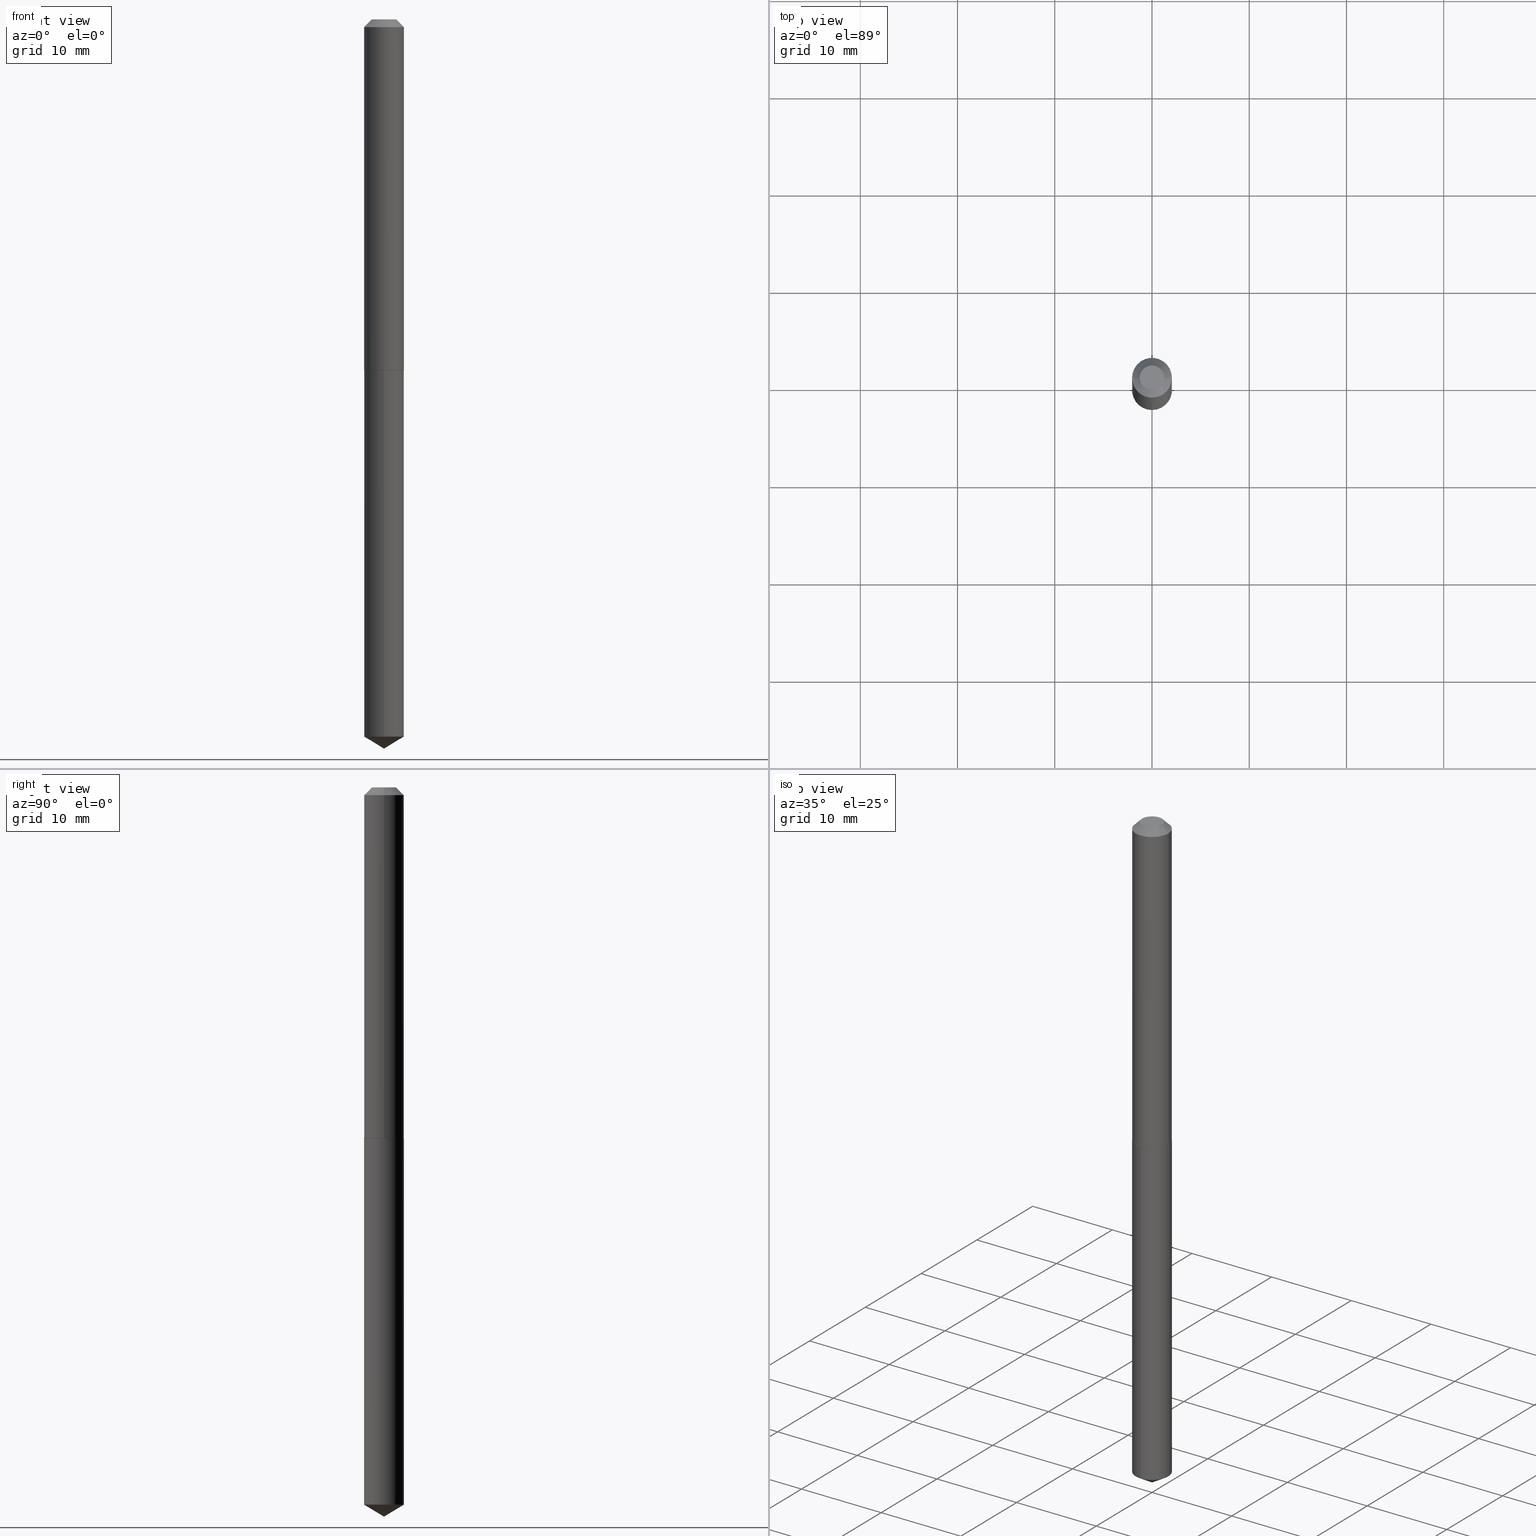
[diagram: canonical four-view strip — front | top / right | iso, engineering-drawing reading convention]
A machine part, canonical four-view strip (front | top / right | iso — engineering-drawing reading convention). The complete STEP part file that produces these views, byte-faithful:
ISO-10303-21;
HEADER;
FILE_DESCRIPTION (( 'STEP AP203' ),
    '1' );
FILE_NAME ('68318.STEP',
    '2024-04-23T13:04:34',
    ( '' ),
    ( '' ),
    'SwSTEP 2.0',
    'SolidWorks 2023',
    '' );
FILE_SCHEMA (( 'CONFIG_CONTROL_DESIGN' ));
ENDSEC;

DATA;
#1 = PERSON_AND_ORGANIZATION ( #242, #229 ) ;
#2 = ADVANCED_FACE ( 'NONE', ( #318 ), #248, .T. ) ;
#3 = AXIS2_PLACEMENT_3D ( 'NONE', #60, #372, #315 ) ;
#4 = CARTESIAN_POINT ( 'NONE',  ( 3.475744814230933928E-29, -4.962442426897761682E-15, -1.421299999999999564 ) ) ;
#5 = DIRECTION ( 'NONE',  ( -1.000000000000000000, 6.982962677686265922E-15, -4.876176775795935793E-29 ) ) ;
#6 = FACE_OUTER_BOUND ( 'NONE', #376, .T. ) ;
#7 = AXIS2_PLACEMENT_3D ( 'NONE', #100, #265, #285 ) ;
#8 = CARTESIAN_POINT ( 'NONE',  ( 0.08020000000000028495, -5.522476033648201326E-15, -1.421299999999999342 ) ) ;
#9 = DIRECTION ( 'NONE',  ( 1.000000000000000000, -6.982962677686269077E-15, 0.000000000000000000 ) ) ;
#10 = EDGE_CURVE ( 'NONE', #201, #239, #12, .T. ) ;
#11 = DIRECTION ( 'NONE',  ( -2.445468806185136877E-29, 3.491481338843145188E-15, 1.000000000000000000 ) ) ;
#12 = LINE ( 'NONE', #254, #91 ) ;
#13 = VECTOR ( 'NONE', #236, 39.37007874015748143 ) ;
#14 = PLANE ( 'NONE',  #300 ) ;
#15 = CC_DESIGN_APPROVAL ( #127, ( #56 ) ) ;
#16 = CARTESIAN_POINT ( 'NONE',  ( 7.220975350531940254E-29, -1.030965524028098559E-14, -2.952799999999999869 ) ) ;
#17 = EDGE_CURVE ( 'NONE', #239, #47, #288, .T. ) ;
#18 = CARTESIAN_POINT ( 'NONE',  ( 3.475744814230933928E-29, -4.962442426897761682E-15, -1.421299999999999564 ) ) ;
#19 = VECTOR ( 'NONE', #11, 39.37007874015748143 ) ;
#20 = LOCAL_TIME ( 9, 4, 34.00000000000000000, #119 ) ;
#21 = ORIENTED_EDGE ( 'NONE', *, *, #317, .F. ) ;
#22 = EDGE_LOOP ( 'NONE', ( #331, #26, #101, #279 ) ) ;
#23 = ADVANCED_FACE ( 'NONE', ( #40 ), #263, .T. ) ;
#24 = CIRCLE ( 'NONE', #55, 0.08069999999999999396 ) ;
#25 = PERSON_AND_ORGANIZATION_ROLE ( 'design_supplier' ) ;
#26 = ORIENTED_EDGE ( 'NONE', *, *, #116, .T. ) ;
#27 = DATE_TIME_ROLE ( 'creation_date' ) ;
#28 = ORIENTED_EDGE ( 'NONE', *, *, #104, .T. ) ;
#29 = ORIENTED_EDGE ( 'NONE', *, *, #67, .F. ) ;
#30 = PLANE ( 'NONE',  #345 ) ;
#31 = CARTESIAN_POINT ( 'NONE',  ( 7.220809219167172269E-29, -1.030989108179921796E-14, -2.952799999999999869 ) ) ;
#32 = DIRECTION ( 'NONE',  ( 0.7071067811865452413, -7.319954787623248157E-15, -0.7071067811865497932 ) ) ;
#33 = VECTOR ( 'NONE', #89, 39.37007874015748143 ) ;
#34 = APPROVAL_PERSON_ORGANIZATION ( #273, #130, #231 ) ;
#35 = LINE ( 'NONE', #122, #141 ) ;
#36 = DIRECTION ( 'NONE',  ( -6.982962677686265922E-15, -1.000000000000000000, 3.468864327941583565E-15 ) ) ;
#37 = CARTESIAN_POINT ( 'NONE',  ( 3.475744814230932807E-29, -4.962442426897760893E-15, -1.421299999999999342 ) ) ;
#38 = ORIENTED_EDGE ( 'NONE', *, *, #17, .T. ) ;
#39 = CARTESIAN_POINT ( 'NONE',  ( 7.642090019328601786E-31, -1.091087918388490144E-16, -0.03125000000000020123 ) ) ;
#40 = FACE_OUTER_BOUND ( 'NONE', #251, .T. ) ;
#41 = CARTESIAN_POINT ( 'NONE',  ( -0.08070000000000016049, -4.387288698469938583E-15, -1.420799999999999841 ) ) ;
#42 =( NAMED_UNIT ( * ) SI_UNIT ( $, .STERADIAN. ) SOLID_ANGLE_UNIT ( ) );
#43 = CC_DESIGN_SECURITY_CLASSIFICATION ( #170, ( #56 ) ) ;
#44 = LINE ( 'NONE', #63, #334 ) ;
#45 = DIRECTION ( 'NONE',  ( 1.000000000000000000, -6.982962677686266711E-15, 4.876176775795935793E-29 ) ) ;
#46 = DIRECTION ( 'NONE',  ( -2.445468806185136597E-29, 3.491481338843145583E-15, 1.000000000000000000 ) ) ;
#47 = VERTEX_POINT ( 'NONE', #41 ) ;
#48 = LENGTH_MEASURE_WITH_UNIT ( LENGTH_MEASURE( 0.02539999999999999897 ), #295 );
#49 = CONICAL_SURFACE ( 'NONE', #64, 0.08070000000000016049, 0.7853981633977044075 ) ;
#50 = APPLICATION_PROTOCOL_DEFINITION ( 'international standard', 'config_control_design', 1994, #155 ) ;
#51 = VERTEX_POINT ( 'NONE', #259 ) ;
#52 = DESIGN_CONTEXT ( 'detailed design', #155, 'design' ) ;
#53 = APPROVAL_STATUS ( 'not_yet_approved' ) ;
#54 = VECTOR ( 'NONE', #225, 39.37007874015748143 ) ;
#55 = AXIS2_PLACEMENT_3D ( 'NONE', #39, #46, #109 ) ;
#56 = PRODUCT_DEFINITION_FORMATION_WITH_SPECIFIED_SOURCE ( 'ANY', '', #260, .NOT_KNOWN. ) ;
#57 = SHAPE_DEFINITION_REPRESENTATION ( #193, #356 ) ;
#58 = FACE_OUTER_BOUND ( 'NONE', #244, .T. ) ;
#59 = FACE_OUTER_BOUND ( 'NONE', #159, .T. ) ;
#60 = CARTESIAN_POINT ( 'NONE',  ( 7.642090019328601786E-31, -1.091087918388490144E-16, -0.03125000000000020123 ) ) ;
#61 = FACE_OUTER_BOUND ( 'NONE', #107, .T. ) ;
#62 = VERTEX_POINT ( 'NONE', #327 ) ;
#63 = CARTESIAN_POINT ( 'NONE',  ( -0.08069999999999999396, 4.544162962504325645E-16, -0.03125000000000020123 ) ) ;
#64 = AXIS2_PLACEMENT_3D ( 'NONE', #253, #291, #223 ) ;
#65 = DIRECTION ( 'NONE',  ( -5.985567269335946802E-15, -0.8571673007021111124, 0.5150380749100559319 ) ) ;
#66 = PRODUCT_RELATED_PRODUCT_CATEGORY ( 'detail', '', ( #260 ) ) ;
#67 = EDGE_CURVE ( 'NONE', #201, #238, #181, .T. ) ;
#68 =( NAMED_UNIT ( * ) PLANE_ANGLE_UNIT ( ) SI_UNIT ( $, .RADIAN. ) );
#69 = DIRECTION ( 'NONE',  ( 1.000000000000000000, -6.982962677686269077E-15, 0.000000000000000000 ) ) ;
#70 = DIRECTION ( 'NONE',  ( -2.445410870755612357E-29, 3.491564305675704227E-15, 1.000000000000000000 ) ) ;
#71 = EDGE_CURVE ( 'NONE', #62, #224, #44, .T. ) ;
#72 = CIRCLE ( 'NONE', #204, 0.08020000000000028495 ) ;
#73 = LOCAL_TIME ( 9, 4, 34.00000000000000000, #147 ) ;
#74 = EDGE_CURVE ( 'NONE', #103, #224, #286, .T. ) ;
#75 = CARTESIAN_POINT ( 'NONE',  ( 0.000000000000000000, 0.000000000000000000, 0.000000000000000000 ) ) ;
#76 = ORIENTED_EDGE ( 'NONE', *, *, #222, .T. ) ;
#77 = VECTOR ( 'NONE', #337, 39.37007874015748143 ) ;
#78 = LOCAL_TIME ( 9, 4, 34.00000000000000000, #272 ) ;
#79 = CLOSED_SHELL ( 'NONE', ( #174, #23, #95, #2, #226 ) ) ;
#80 = ORIENTED_EDGE ( 'NONE', *, *, #384, .T. ) ;
#81 = APPROVAL_STATUS ( 'not_yet_approved' ) ;
#82 = CC_DESIGN_PERSON_AND_ORGANIZATION_ASSIGNMENT ( #321, #175, ( #260 ) ) ;
#83 = ORIENTED_EDGE ( 'NONE', *, *, #71, .F. ) ;
#84 = CALENDAR_DATE ( 2024, 23, 4 ) ;
#85 = AXIS2_PLACEMENT_3D ( 'NONE', #186, #98, #210 ) ;
#86 = LOCAL_TIME ( 9, 4, 34.00000000000000000, #385 ) ;
#87 = DATE_AND_TIME ( #303, #20 ) ;
#88 = EDGE_CURVE ( 'NONE', #239, #103, #214, .T. ) ;
#89 = DIRECTION ( 'NONE',  ( -2.445410870755612357E-29, 3.491564305675704227E-15, 1.000000000000000000 ) ) ;
#90 = DIRECTION ( 'NONE',  ( -2.445468806185136597E-29, 3.491481338843145583E-15, 1.000000000000000000 ) ) ;
#91 = VECTOR ( 'NONE', #323, 39.37007874015748143 ) ;
#92 = AXIS2_PLACEMENT_3D ( 'NONE', #4, #282, #311 ) ;
#93 = CC_DESIGN_APPROVAL ( #146, ( #287 ) ) ;
#94 = DIRECTION ( 'NONE',  ( -2.445468806185136597E-29, 3.491481338843145583E-15, 1.000000000000000000 ) ) ;
#95 = ADVANCED_FACE ( 'NONE', ( #6 ), #379, .T. ) ;
#96 = CARTESIAN_POINT ( 'NONE',  ( -0.08070000000000007723, 5.734079877584013987E-16, -3.969580617835712947E-30 ) ) ;
#97 = ORIENTED_EDGE ( 'NONE', *, *, #275, .T. ) ;
#98 = DIRECTION ( 'NONE',  ( 2.445410870755612077E-29, -3.491564305675704227E-15, -1.000000000000000000 ) ) ;
#99 = AXIS2_PLACEMENT_3D ( 'NONE', #348, #355, #139 ) ;
#100 = CARTESIAN_POINT ( 'NONE',  ( 7.642090019328601786E-31, -1.091087918388490144E-16, -0.03125000000000020123 ) ) ;
#101 = ORIENTED_EDGE ( 'NONE', *, *, #10, .T. ) ;
#102 = DIRECTION ( 'NONE',  ( 1.000000000000000000, -6.982962677686265133E-15, 0.000000000000000000 ) ) ;
#103 = VERTEX_POINT ( 'NONE', #235 ) ;
#104 = EDGE_CURVE ( 'NONE', #196, #62, #354, .T. ) ;
#105 = LINE ( 'NONE', #220, #367 ) ;
#106 = ORIENTED_EDGE ( 'NONE', *, *, #211, .T. ) ;
#107 = EDGE_LOOP ( 'NONE', ( #271, #194 ) ) ;
#108 = MANIFOLD_SOLID_BREP ( 'Body-Move/Copy2[2]', #182 ) ;
#109 = DIRECTION ( 'NONE',  ( 1.000000000000000000, -6.982962677686266711E-15, 0.000000000000000000 ) ) ;
#110 = AXIS2_PLACEMENT_3D ( 'NONE', #129, #132, #36 ) ;
#111 = MECHANICAL_CONTEXT ( 'NONE', #294, 'mechanical' ) ;
#112 = APPROVAL_PERSON_ORGANIZATION ( #1, #127, #388 ) ;
#113 = DIRECTION ( 'NONE',  ( 0.000000000000000000, 0.000000000000000000, 1.000000000000000000 ) ) ;
#114 = APPROVAL_STATUS ( 'not_yet_approved' ) ;
#115 = AXIS2_PLACEMENT_3D ( 'NONE', #313, #370, #164 ) ;
#116 = EDGE_CURVE ( 'NONE', #238, #201, #72, .T. ) ;
#117 = ORIENTED_EDGE ( 'NONE', *, *, #209, .F. ) ;
#118 = ORIENTED_EDGE ( 'NONE', *, *, #368, .F. ) ;
#119 = COORDINATED_UNIVERSAL_TIME_OFFSET ( 5, 0, .BEHIND. ) ;
#120 = CIRCLE ( 'NONE', #99, 0.04944999999999999396 ) ;
#121 = CC_DESIGN_APPROVAL ( #130, ( #170 ) ) ;
#122 = CARTESIAN_POINT ( 'NONE',  ( 7.220809219167172269E-29, -1.030989108179921796E-14, -2.952799999999999869 ) ) ;
#123 = ORIENTED_EDGE ( 'NONE', *, *, #211, .F. ) ;
#124 = DIRECTION ( 'NONE',  ( -6.982962677686266711E-15, -1.000000000000000000, 6.770379166454184154E-15 ) ) ;
#125 = CARTESIAN_POINT ( 'NONE',  ( -1.182960040634179348E-47, 1.688953421129297978E-33, 4.837354856632025983E-19 ) ) ;
#126 = AXIS2_PLACEMENT_3D ( 'NONE', #339, #207, #102 ) ;
#127 = APPROVAL ( #81, 'UNSPECIFIED' ) ;
#128 = CYLINDRICAL_SURFACE ( 'NONE', #176, 0.08070000000000007723 ) ;
#129 = CARTESIAN_POINT ( 'NONE',  ( -8.905512697089237819E-28, 1.271533884797356640E-13, 36.41727874015747801 ) ) ;
#130 = APPROVAL ( #53, 'UNSPECIFIED' ) ;
#131 = DIRECTION ( 'NONE',  ( -2.445410870755612357E-29, 3.491564305675704227E-15, 1.000000000000000000 ) ) ;
#132 = DIRECTION ( 'NONE',  ( -2.445410870755612357E-29, 3.491564305675704227E-15, 1.000000000000000000 ) ) ;
#133 = ORIENTED_EDGE ( 'NONE', *, *, #88, .T. ) ;
#134 = CARTESIAN_POINT ( 'NONE',  ( 0.08070000000000016049, -5.524221774317623619E-15, -1.420799999999999841 ) ) ;
#135 = EDGE_CURVE ( 'NONE', #51, #324, #152, .T. ) ;
#136 = APPROVAL_PERSON_ORGANIZATION ( #173, #146, #179 ) ;
#137 = LINE ( 'NONE', #16, #54 ) ;
#138 = ADVANCED_FACE ( 'NONE', ( #247 ), #128, .T. ) ;
#139 = DIRECTION ( 'NONE',  ( 1.000000000000000000, -6.982962677686266711E-15, 4.876163536243812801E-29 ) ) ;
#140 = ORIENTED_EDGE ( 'NONE', *, *, #359, .T. ) ;
#141 = VECTOR ( 'NONE', #65, 39.37007874015748854 ) ;
#142 = FACE_OUTER_BOUND ( 'NONE', #151, .T. ) ;
#143 = APPROVAL_DATE_TIME ( #87, #127 ) ;
#144 = VERTEX_POINT ( 'NONE', #342 ) ;
#145 = ORIENTED_EDGE ( 'NONE', *, *, #67, .T. ) ;
#146 = APPROVAL ( #114, 'UNSPECIFIED' ) ;
#147 = COORDINATED_UNIVERSAL_TIME_OFFSET ( 5, 0, .BEHIND. ) ;
#148 = ORIENTED_EDGE ( 'NONE', *, *, #382, .T. ) ;
#149 = DATE_TIME_ROLE ( 'classification_date' ) ;
#150 = ADVANCED_FACE ( 'NONE', ( #59 ), #187, .T. ) ;
#151 = EDGE_LOOP ( 'NONE', ( #360, #218, #169, #83 ) ) ;
#152 = CIRCLE ( 'NONE', #228, 0.08069999999999999396 ) ;
#153 = DIRECTION ( 'NONE',  ( -2.445468806185136597E-29, 3.491481338843145583E-15, 1.000000000000000000 ) ) ;
#154 = ADVANCED_FACE ( 'NONE', ( #306 ), #374, .T. ) ;
#155 = APPLICATION_CONTEXT ( 'configuration controlled 3d designs of mechanical parts and assemblies' ) ;
#156 = DIRECTION ( 'NONE',  ( 1.000000000000000000, -6.982962677686265133E-15, 0.000000000000000000 ) ) ;
#157 = EDGE_CURVE ( 'NONE', #144, #324, #180, .T. ) ;
#158 = CARTESIAN_POINT ( 'NONE',  ( 0.000000000000000000, 0.000000000000000000, 0.000000000000000000 ) ) ;
#159 = EDGE_LOOP ( 'NONE', ( #145, #330, #292, #172 ) ) ;
#160 = AXIS2_PLACEMENT_3D ( 'NONE', #351, #353, #340 ) ;
#161 = CC_DESIGN_DATE_AND_TIME_ASSIGNMENT ( #200, #27, ( #287 ) ) ;
#162 = LINE ( 'NONE', #216, #233 ) ;
#163 = DIRECTION ( 'NONE',  ( -2.445468806185136597E-29, 3.491481338843145583E-15, 1.000000000000000000 ) ) ;
#164 = DIRECTION ( 'NONE',  ( -6.982962677686266711E-15, -1.000000000000000000, 3.385189583227092077E-15 ) ) ;
#165 = DIRECTION ( 'NONE',  ( -2.445468806185136597E-29, 3.491481338843145583E-15, 1.000000000000000000 ) ) ;
#166 = AXIS2_PLACEMENT_3D ( 'NONE', #343, #309, #249 ) ;
#167 = EDGE_CURVE ( 'NONE', #238, #47, #215, .T. ) ;
#168 =( CONVERSION_BASED_UNIT ( 'INCH', #48 ) LENGTH_UNIT ( ) NAMED_UNIT ( #252 ) );
#169 = ORIENTED_EDGE ( 'NONE', *, *, #74, .T. ) ;
#170 = SECURITY_CLASSIFICATION ( '', '', #297 ) ;
#171 = FACE_OUTER_BOUND ( 'NONE', #22, .T. ) ;
#172 = ORIENTED_EDGE ( 'NONE', *, *, #10, .F. ) ;
#173 = PERSON_AND_ORGANIZATION ( #242, #229 ) ;
#174 = ADVANCED_FACE ( 'NONE', ( #305 ), #184, .T. ) ;
#175 = PERSON_AND_ORGANIZATION_ROLE ( 'design_owner' ) ;
#176 = AXIS2_PLACEMENT_3D ( 'NONE', #158, #163, #245 ) ;
#177 = ORIENTED_EDGE ( 'NONE', *, *, #71, .T. ) ;
#178 = VERTEX_POINT ( 'NONE', #31 ) ;
#179 = APPROVAL_ROLE ( '' ) ;
#180 = LINE ( 'NONE', #212, #33 ) ;
#181 = CIRCLE ( 'NONE', #126, 0.08020000000000028495 ) ;
#182 = CLOSED_SHELL ( 'NONE', ( #347, #299, #150, #307, #314, #138, #154, #258 ) ) ;
#183 = CARTESIAN_POINT ( 'NONE',  ( 3.474522079827841687E-29, -4.960696686228340179E-15, -1.420799999999999841 ) ) ;
#184 = CYLINDRICAL_SURFACE ( 'NONE', #92, 0.08069999999999999396 ) ;
#185 = EDGE_LOOP ( 'NONE', ( #117, #118, #177, #148 ) ) ;
#186 = CARTESIAN_POINT ( 'NONE',  ( 3.475744814230933928E-29, -4.962442426897761682E-15, -1.421299999999999564 ) ) ;
#187 = CONICAL_SURFACE ( 'NONE', #227, 0.08070000000000016049, 0.7853981633977044075 ) ;
#188 = CARTESIAN_POINT ( 'NONE',  ( 7.102314929864133069E-29, -1.014046912139041689E-14, -2.904310548044475748 ) ) ;
#189 = CARTESIAN_POINT ( 'NONE',  ( 3.475744814230932807E-29, -4.962442426897760893E-15, -1.421299999999999342 ) ) ;
#190 = CARTESIAN_POINT ( 'NONE',  ( 7.102314929864133069E-29, -1.014046912139041689E-14, -2.904310548044475748 ) ) ;
#191 = CONICAL_SURFACE ( 'NONE', #7, 0.08069999999999999396, 0.7853981633974450594 ) ;
#192 = DIRECTION ( 'NONE',  ( -6.982962677686266711E-15, -1.000000000000000000, 3.385189583227092077E-15 ) ) ;
#193 = PRODUCT_DEFINITION_SHAPE ( 'NONE', 'NONE',  #287 ) ;
#194 = ORIENTED_EDGE ( 'NONE', *, *, #135, .T. ) ;
#195 = CARTESIAN_POINT ( 'NONE',  ( -5.635250880892469553E-16, -0.08070000000000496221, -1.421299999999999342 ) ) ;
#196 = VERTEX_POINT ( 'NONE', #308 ) ;
#197 = AXIS2_PLACEMENT_3D ( 'NONE', #125, #328, #361 ) ;
#198 = CALENDAR_DATE ( 2024, 23, 4 ) ;
#199 = UNCERTAINTY_MEASURE_WITH_UNIT (LENGTH_MEASURE( 1.000000000000000082E-05 ), #168, 'distance_accuracy_value', 'NONE');
#200 = DATE_AND_TIME ( #84, #205 ) ;
#201 = VERTEX_POINT ( 'NONE', #8 ) ;
#202 = PERSON_AND_ORGANIZATION ( #242, #229 ) ;
#203 = ORIENTED_EDGE ( 'NONE', *, *, #320, .T. ) ;
#204 = AXIS2_PLACEMENT_3D ( 'NONE', #37, #94, #156 ) ;
#205 = LOCAL_TIME ( 9, 4, 34.00000000000000000, #363 ) ;
#206 = ORIENTED_EDGE ( 'NONE', *, *, #88, .F. ) ;
#207 = DIRECTION ( 'NONE',  ( -2.445468806185136597E-29, 3.491481338843145583E-15, 1.000000000000000000 ) ) ;
#208 = APPROVAL_DATE_TIME ( #383, #130 ) ;
#209 = EDGE_CURVE ( 'NONE', #196, #103, #162, .T. ) ;
#210 = DIRECTION ( 'NONE',  ( 6.982962677686265922E-15, 1.000000000000000000, -3.491564305675704227E-15 ) ) ;
#211 = EDGE_CURVE ( 'NONE', #47, #224, #278, .T. ) ;
#212 = CARTESIAN_POINT ( 'NONE',  ( -5.635250880892469553E-16, -0.08070000000000496221, -1.421299999999999342 ) ) ;
#213 = CIRCLE ( 'NONE', #364, 0.08069999999999999396 ) ;
#214 = LINE ( 'NONE', #381, #13 ) ;
#215 = LINE ( 'NONE', #250, #77 ) ;
#216 = CARTESIAN_POINT ( 'NONE',  ( 0.08069999999999999396, -6.627509802590116239E-16, -0.03125000000000020123 ) ) ;
#217 = CC_DESIGN_DATE_AND_TIME_ASSIGNMENT ( #335, #149, ( #170 ) ) ;
#218 = ORIENTED_EDGE ( 'NONE', *, *, #209, .T. ) ;
#219 = CARTESIAN_POINT ( 'NONE',  ( 3.474522079827841687E-29, -4.960696686228340179E-15, -1.420799999999999841 ) ) ;
#220 = CARTESIAN_POINT ( 'NONE',  ( 5.734079877584354184E-16, 0.08069999999999502571, -1.421300000000000008 ) ) ;
#221 = DIRECTION ( 'NONE',  ( -0.7071067811865452413, 2.468850131082233000E-15, -0.7071067811865497932 ) ) ;
#222 = EDGE_CURVE ( 'NONE', #47, #239, #241, .T. ) ;
#223 = DIRECTION ( 'NONE',  ( 1.000000000000000000, -6.982962677686269077E-15, 0.000000000000000000 ) ) ;
#224 = VERTEX_POINT ( 'NONE', #344 ) ;
#225 = DIRECTION ( 'NONE',  ( 6.090539988449784746E-15, 0.8571673007021146651, 0.5150380749100500477 ) ) ;
#226 = ADVANCED_FACE ( 'NONE', ( #61 ), #276, .F. ) ;
#227 = AXIS2_PLACEMENT_3D ( 'NONE', #183, #90, #284 ) ;
#228 = AXIS2_PLACEMENT_3D ( 'NONE', #346, #131, #365 ) ;
#229 = ORGANIZATION ( 'UNSPECIFIED', 'UNSPECIFIED', '' ) ;
#230 = ORIENTED_EDGE ( 'NONE', *, *, #368, .T. ) ;
#231 = APPROVAL_ROLE ( '' ) ;
#232 = EDGE_LOOP ( 'NONE', ( #123, #76, #133, #312 ) ) ;
#233 = VECTOR ( 'NONE', #32, 39.37007874015748143 ) ;
#234 = PERSON_AND_ORGANIZATION_ROLE ( 'creator' ) ;
#235 = CARTESIAN_POINT ( 'NONE',  ( 0.08069999999999999396, -6.726338799281306672E-16, -0.03125000000000020123 ) ) ;
#236 = DIRECTION ( 'NONE',  ( -2.445468806185136877E-29, 3.491481338843145188E-15, 1.000000000000000000 ) ) ;
#237 = PERSON_AND_ORGANIZATION ( #242, #229 ) ;
#238 = VERTEX_POINT ( 'NONE', #373 ) ;
#239 = VERTEX_POINT ( 'NONE', #134 ) ;
#240 = EDGE_LOOP ( 'NONE', ( #97, #140, #21, #243 ) ) ;
#241 = CIRCLE ( 'NONE', #386, 0.08070000000000016049 ) ;
#242 = PERSON ( 'UNSPECIFIED', 'UNSPECIFIED', 'UNSPECIFIED', ('UNSPECIFIED'), ('UNSPECIFIED'), ('UNSPECIFIED') ) ;
#243 = ORIENTED_EDGE ( 'NONE', *, *, #157, .F. ) ;
#244 = EDGE_LOOP ( 'NONE', ( #230, #28 ) ) ;
#245 = DIRECTION ( 'NONE',  ( 1.000000000000000000, -6.982962677686266711E-15, 4.876176775795935793E-29 ) ) ;
#246 = FACE_OUTER_BOUND ( 'NONE', #298, .T. ) ;
#247 = FACE_OUTER_BOUND ( 'NONE', #232, .T. ) ;
#248 = CYLINDRICAL_SURFACE ( 'NONE', #115, 0.08069999999999999396 ) ;
#249 = DIRECTION ( 'NONE',  ( -6.982962677686265922E-15, -1.000000000000000000, 3.468864327941583565E-15 ) ) ;
#250 = CARTESIAN_POINT ( 'NONE',  ( -0.08070000000000016049, -4.387288698469938583E-15, -1.420799999999999841 ) ) ;
#251 = EDGE_LOOP ( 'NONE', ( #336, #80, #268 ) ) ;
#252 = DIMENSIONAL_EXPONENTS ( 1.000000000000000000, 0.000000000000000000, 0.000000000000000000, 0.000000000000000000, 0.000000000000000000, 0.000000000000000000, 0.000000000000000000 ) ;
#253 = CARTESIAN_POINT ( 'NONE',  ( 3.474522079827841687E-29, -4.960696686228340179E-15, -1.420799999999999841 ) ) ;
#254 = CARTESIAN_POINT ( 'NONE',  ( 0.08070000000000016049, -5.524221774317623619E-15, -1.420799999999999841 ) ) ;
#255 = ORIENTED_EDGE ( 'NONE', *, *, #135, .F. ) ;
#256 = FACE_OUTER_BOUND ( 'NONE', #257, .T. ) ;
#257 = EDGE_LOOP ( 'NONE', ( #29, #261 ) ) ;
#258 = ADVANCED_FACE ( 'NONE', ( #58 ), #30, .F. ) ;
#259 = CARTESIAN_POINT ( 'NONE',  ( 5.734079877584720018E-16, 0.08069999999999502571, -1.421300000000000008 ) ) ;
#260 = PRODUCT ( '68318', '68318', '', ( #111 ) ) ;
#261 = ORIENTED_EDGE ( 'NONE', *, *, #116, .F. ) ;
#262 = DIRECTION ( 'NONE',  ( 1.000000000000000000, 0.000000000000000000, 0.000000000000000000 ) ) ;
#263 = CONICAL_SURFACE ( 'NONE', #110, 65.52281426576863055, 1.029744258676655866 ) ;
#264 =( GEOMETRIC_REPRESENTATION_CONTEXT ( 3 ) GLOBAL_UNCERTAINTY_ASSIGNED_CONTEXT ( ( #199 ) ) GLOBAL_UNIT_ASSIGNED_CONTEXT ( ( #168, #68, #42 ) ) REPRESENTATION_CONTEXT ( 'NONE', 'WORKASPACE' ) );
#265 = DIRECTION ( 'NONE',  ( 2.445468806185136597E-29, -3.491481338843145583E-15, -1.000000000000000000 ) ) ;
#266 = EDGE_CURVE ( 'NONE', #178, #144, #35, .T. ) ;
#267 = PERSON_AND_ORGANIZATION_ROLE ( 'classification_officer' ) ;
#268 = ORIENTED_EDGE ( 'NONE', *, *, #275, .F. ) ;
#269 = CALENDAR_DATE ( 2024, 23, 4 ) ;
#270 = CIRCLE ( 'NONE', #326, 0.08069999999999999396 ) ;
#271 = ORIENTED_EDGE ( 'NONE', *, *, #317, .T. ) ;
#272 = COORDINATED_UNIVERSAL_TIME_OFFSET ( 5, 0, .BEHIND. ) ;
#273 = PERSON_AND_ORGANIZATION ( #242, #229 ) ;
#274 = AXIS2_PLACEMENT_3D ( 'NONE', #190, #375, #316 ) ;
#275 = EDGE_CURVE ( 'NONE', #144, #304, #213, .T. ) ;
#276 = PLANE ( 'NONE',  #85 ) ;
#277 = DIRECTION ( 'NONE',  ( 2.438088387897960049E-29, -3.491481338843145188E-15, -1.000000000000000000 ) ) ;
#278 = LINE ( 'NONE', #96, #19 ) ;
#279 = ORIENTED_EDGE ( 'NONE', *, *, #222, .F. ) ;
#280 = AXIS2_PLACEMENT_3D ( 'NONE', #357, #113, #262 ) ;
#281 = CC_DESIGN_PERSON_AND_ORGANIZATION_ASSIGNMENT ( #358, #25, ( #56 ) ) ;
#282 = DIRECTION ( 'NONE',  ( -2.445410870755612357E-29, 3.491564305675704227E-15, 1.000000000000000000 ) ) ;
#283 = DIRECTION ( 'NONE',  ( -2.445468806185136597E-29, 3.491481338843145583E-15, 1.000000000000000000 ) ) ;
#284 = DIRECTION ( 'NONE',  ( 1.000000000000000000, -6.982962677686269077E-15, 0.000000000000000000 ) ) ;
#285 = DIRECTION ( 'NONE',  ( -1.000000000000000000, 6.982962677686266711E-15, 0.000000000000000000 ) ) ;
#286 = CIRCLE ( 'NONE', #160, 0.08069999999999999396 ) ;
#287 = PRODUCT_DEFINITION ( 'UNKNOWN', '', #56, #52 ) ;
#288 = CIRCLE ( 'NONE', #325, 0.08070000000000016049 ) ;
#289 = DIRECTION ( 'NONE',  ( -2.445410870755612357E-29, 3.491564305675704227E-15, 1.000000000000000000 ) ) ;
#290 = CC_DESIGN_PERSON_AND_ORGANIZATION_ASSIGNMENT ( #202, #267, ( #170 ) ) ;
#291 = DIRECTION ( 'NONE',  ( -2.445468806185136597E-29, 3.491481338843145583E-15, 1.000000000000000000 ) ) ;
#292 = ORIENTED_EDGE ( 'NONE', *, *, #17, .F. ) ;
#293 = AXIS2_PLACEMENT_3D ( 'NONE', #75, #165, #45 ) ;
#294 = APPLICATION_CONTEXT ( 'configuration controlled 3d designs of mechanical parts and assemblies' ) ;
#295 =( LENGTH_UNIT ( ) NAMED_UNIT ( * ) SI_UNIT ( $, .METRE. ) );
#296 = PERSON_AND_ORGANIZATION_ROLE ( 'creator' ) ;
#297 = SECURITY_CLASSIFICATION_LEVEL ( 'unclassified' ) ;
#298 = EDGE_LOOP ( 'NONE', ( #38, #106, #338, #206 ) ) ;
#299 = ADVANCED_FACE ( 'NONE', ( #246 ), #369, .T. ) ;
#300 = AXIS2_PLACEMENT_3D ( 'NONE', #189, #322, #377 ) ;
#301 = ORIENTED_EDGE ( 'NONE', *, *, #320, .F. ) ;
#302 = DATE_AND_TIME ( #329, #78 ) ;
#303 = CALENDAR_DATE ( 2024, 23, 4 ) ;
#304 = VERTEX_POINT ( 'NONE', #352 ) ;
#305 = FACE_OUTER_BOUND ( 'NONE', #240, .T. ) ;
#306 = FACE_OUTER_BOUND ( 'NONE', #185, .T. ) ;
#307 = ADVANCED_FACE ( 'NONE', ( #256 ), #14, .F. ) ;
#308 = CARTESIAN_POINT ( 'NONE',  ( 0.04944999999999999396, -5.010013031244069915E-16, 4.837354856661612119E-19 ) ) ;
#309 = DIRECTION ( 'NONE',  ( -2.445410870755612357E-29, 3.491564305675704227E-15, 1.000000000000000000 ) ) ;
#310 = CC_DESIGN_PERSON_AND_ORGANIZATION_ASSIGNMENT ( #362, #234, ( #56 ) ) ;
#311 = DIRECTION ( 'NONE',  ( -6.982962677686266711E-15, -1.000000000000000000, 3.385189583227092077E-15 ) ) ;
#312 = ORIENTED_EDGE ( 'NONE', *, *, #382, .F. ) ;
#313 = CARTESIAN_POINT ( 'NONE',  ( 3.475744814230933928E-29, -4.962442426897761682E-15, -1.421299999999999564 ) ) ;
#314 = ADVANCED_FACE ( 'NONE', ( #171 ), #49, .T. ) ;
#315 = DIRECTION ( 'NONE',  ( -1.000000000000000000, 6.982962677686266711E-15, 0.000000000000000000 ) ) ;
#316 = DIRECTION ( 'NONE',  ( -6.982962677686266711E-15, -1.000000000000000000, 6.770379166454184154E-15 ) ) ;
#317 = EDGE_CURVE ( 'NONE', #324, #51, #270, .T. ) ;
#318 = FACE_OUTER_BOUND ( 'NONE', #350, .T. ) ;
#319 = CIRCLE ( 'NONE', #274, 0.08069999999999999396 ) ;
#320 = EDGE_CURVE ( 'NONE', #304, #144, #319, .T. ) ;
#321 = PERSON_AND_ORGANIZATION ( #242, #229 ) ;
#322 = DIRECTION ( 'NONE',  ( -2.438088387897960049E-29, 3.491481338843145188E-15, 1.000000000000000000 ) ) ;
#323 = DIRECTION ( 'NONE',  ( 0.7071067811867286501, -2.468850131084153877E-15, 0.7071067811863664954 ) ) ;
#324 = VERTEX_POINT ( 'NONE', #195 ) ;
#325 = AXIS2_PLACEMENT_3D ( 'NONE', #349, #283, #69 ) ;
#326 = AXIS2_PLACEMENT_3D ( 'NONE', #18, #70, #192 ) ;
#327 = CARTESIAN_POINT ( 'NONE',  ( -0.04944999999999999396, 3.998619003310092961E-16, 4.837354856605972966E-19 ) ) ;
#328 = DIRECTION ( 'NONE',  ( -2.445468806185136597E-29, 3.491481338843145583E-15, 1.000000000000000000 ) ) ;
#329 = CALENDAR_DATE ( 2024, 23, 4 ) ;
#330 = ORIENTED_EDGE ( 'NONE', *, *, #167, .T. ) ;
#331 = ORIENTED_EDGE ( 'NONE', *, *, #167, .F. ) ;
#332 = CC_DESIGN_PERSON_AND_ORGANIZATION_ASSIGNMENT ( #237, #296, ( #287 ) ) ;
#333 = APPROVAL_DATE_TIME ( #302, #146 ) ;
#334 = VECTOR ( 'NONE', #221, 39.37007874015748143 ) ;
#335 = DATE_AND_TIME ( #269, #73 ) ;
#336 = ORIENTED_EDGE ( 'NONE', *, *, #266, .F. ) ;
#337 = DIRECTION ( 'NONE',  ( -0.7071067811867286501, 7.493145998871008915E-15, 0.7071067811863664954 ) ) ;
#338 = ORIENTED_EDGE ( 'NONE', *, *, #74, .F. ) ;
#339 = CARTESIAN_POINT ( 'NONE',  ( 3.475744814230932807E-29, -4.962442426897760893E-15, -1.421299999999999342 ) ) ;
#340 = DIRECTION ( 'NONE',  ( 1.000000000000000000, -6.982962677686266711E-15, 0.000000000000000000 ) ) ;
#341 = CARTESIAN_POINT ( 'NONE',  ( -5.914800203170896741E-48, 8.444767105646489892E-34, 2.418677428316012991E-19 ) ) ;
#342 = CARTESIAN_POINT ( 'NONE',  ( -5.635250880892103719E-16, -0.08070000000001011087, -2.904310548044475304 ) ) ;
#343 = CARTESIAN_POINT ( 'NONE',  ( -8.905512697089237819E-28, 1.271533884797356640E-13, 36.41727874015747801 ) ) ;
#344 = CARTESIAN_POINT ( 'NONE',  ( -0.08069999999999999396, -1.961494751275192255E-15, -0.03125000000000020123 ) ) ;
#345 = AXIS2_PLACEMENT_3D ( 'NONE', #341, #277, #5 ) ;
#346 = CARTESIAN_POINT ( 'NONE',  ( 3.475744814230933928E-29, -4.962442426897761682E-15, -1.421299999999999564 ) ) ;
#347 = ADVANCED_FACE ( 'NONE', ( #142 ), #191, .T. ) ;
#348 = CARTESIAN_POINT ( 'NONE',  ( -1.182960040634179348E-47, 1.688953421129297978E-33, 4.837354856632025983E-19 ) ) ;
#349 = CARTESIAN_POINT ( 'NONE',  ( 3.474522079827841687E-29, -4.960696686228340179E-15, -1.420799999999999841 ) ) ;
#350 = EDGE_LOOP ( 'NONE', ( #387, #203, #390, #255 ) ) ;
#351 = CARTESIAN_POINT ( 'NONE',  ( 7.642090019328601786E-31, -1.091087918388490144E-16, -0.03125000000000020123 ) ) ;
#352 = CARTESIAN_POINT ( 'NONE',  ( 5.734079877584715087E-16, 0.08069999999998982154, -2.904310548044476192 ) ) ;
#353 = DIRECTION ( 'NONE',  ( -2.445468806185136597E-29, 3.491481338843145583E-15, 1.000000000000000000 ) ) ;
#354 = CIRCLE ( 'NONE', #197, 0.04944999999999999396 ) ;
#355 = DIRECTION ( 'NONE',  ( -2.445468806185136597E-29, 3.491481338843145583E-15, 1.000000000000000000 ) ) ;
#356 = ADVANCED_BREP_SHAPE_REPRESENTATION ( '68318', ( #371, #108, #280 ), #264 ) ;
#357 = CARTESIAN_POINT ( 'NONE',  ( 0.000000000000000000, 0.000000000000000000, 0.000000000000000000 ) ) ;
#358 = PERSON_AND_ORGANIZATION ( #242, #229 ) ;
#359 = EDGE_CURVE ( 'NONE', #304, #51, #105, .T. ) ;
#360 = ORIENTED_EDGE ( 'NONE', *, *, #104, .F. ) ;
#361 = DIRECTION ( 'NONE',  ( 1.000000000000000000, -6.982962677686266711E-15, 4.876163536243812801E-29 ) ) ;
#362 = PERSON_AND_ORGANIZATION ( #242, #229 ) ;
#363 = COORDINATED_UNIVERSAL_TIME_OFFSET ( 5, 0, .BEHIND. ) ;
#364 = AXIS2_PLACEMENT_3D ( 'NONE', #188, #366, #124 ) ;
#365 = DIRECTION ( 'NONE',  ( -6.982962677686266711E-15, -1.000000000000000000, 3.385189583227092077E-15 ) ) ;
#366 = DIRECTION ( 'NONE',  ( -2.445410870755612357E-29, 3.491564305675704227E-15, 1.000000000000000000 ) ) ;
#367 = VECTOR ( 'NONE', #289, 39.37007874015748143 ) ;
#368 = EDGE_CURVE ( 'NONE', #62, #196, #120, .T. ) ;
#369 = CYLINDRICAL_SURFACE ( 'NONE', #293, 0.08070000000000007723 ) ;
#370 = DIRECTION ( 'NONE',  ( -2.445410870755612357E-29, 3.491564305675704227E-15, 1.000000000000000000 ) ) ;
#371 = MANIFOLD_SOLID_BREP ( 'Body-Move/Copy2[1]', #79 ) ;
#372 = DIRECTION ( 'NONE',  ( 2.445468806185136597E-29, -3.491481338843145583E-15, -1.000000000000000000 ) ) ;
#373 = CARTESIAN_POINT ( 'NONE',  ( -0.08020000000000028495, -4.389937925644048206E-15, -1.421299999999999342 ) ) ;
#374 = CONICAL_SURFACE ( 'NONE', #3, 0.08069999999999999396, 0.7853981633974450594 ) ;
#375 = DIRECTION ( 'NONE',  ( -2.445410870755612357E-29, 3.491564305675704227E-15, 1.000000000000000000 ) ) ;
#376 = EDGE_LOOP ( 'NONE', ( #389, #380, #301 ) ) ;
#377 = DIRECTION ( 'NONE',  ( 1.000000000000000000, -6.982962677686265922E-15, 4.876176775795935793E-29 ) ) ;
#378 = APPLICATION_PROTOCOL_DEFINITION ( 'international standard', 'config_control_design', 1994, #294 ) ;
#379 = CONICAL_SURFACE ( 'NONE', #166, 65.52281426576863055, 1.029744258676655866 ) ;
#380 = ORIENTED_EDGE ( 'NONE', *, *, #266, .T. ) ;
#381 = CARTESIAN_POINT ( 'NONE',  ( 0.08070000000000007723, -5.635250880892822568E-16, 3.935074658067323862E-30 ) ) ;
#382 = EDGE_CURVE ( 'NONE', #224, #103, #24, .T. ) ;
#383 = DATE_AND_TIME ( #198, #86 ) ;
#384 = EDGE_CURVE ( 'NONE', #178, #304, #137, .T. ) ;
#385 = COORDINATED_UNIVERSAL_TIME_OFFSET ( 5, 0, .BEHIND. ) ;
#386 = AXIS2_PLACEMENT_3D ( 'NONE', #219, #153, #9 ) ;
#387 = ORIENTED_EDGE ( 'NONE', *, *, #359, .F. ) ;
#388 = APPROVAL_ROLE ( '' ) ;
#389 = ORIENTED_EDGE ( 'NONE', *, *, #384, .F. ) ;
#390 = ORIENTED_EDGE ( 'NONE', *, *, #157, .T. ) ;
ENDSEC;
END-ISO-10303-21;
